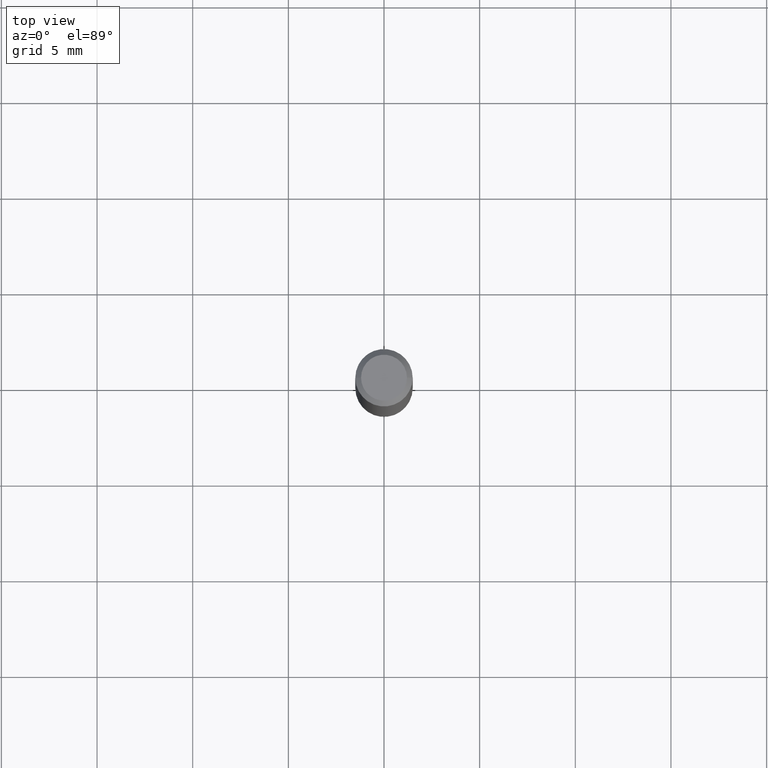
[diagram: clean part render]
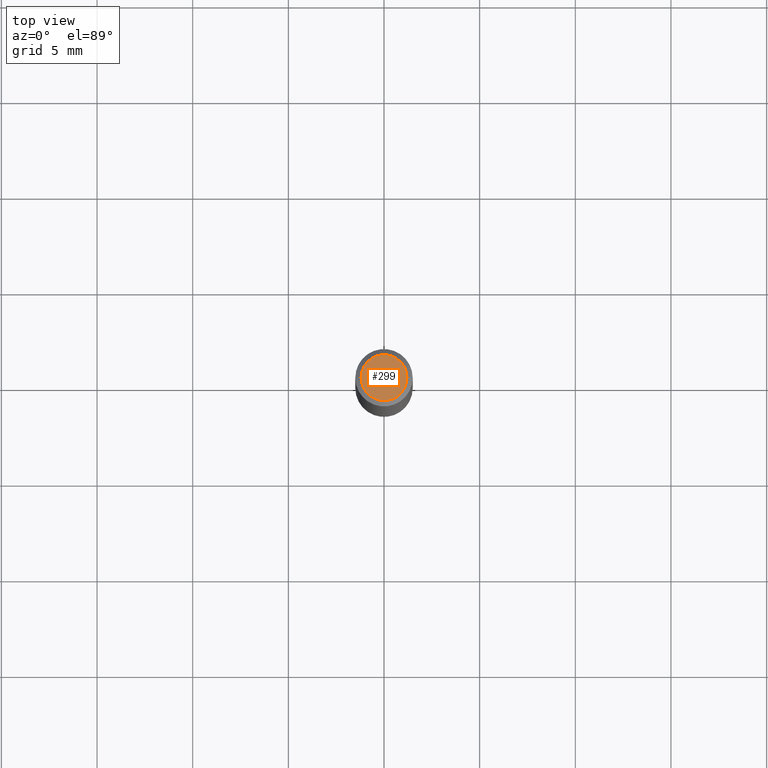
[diagram: same view with one face highlighted and labeled with its STEP entity id]
A machine part, top view. The second image highlights one B-rep face of the part: STEP entity #299.
In plain terms, the highlighted planar face has unit normal (0, -0, -1).
Its self-contained STEP definition (entity closure, byte-faithful):
#54 = ORIENTED_EDGE ( 'NONE', *, *, #225, .T. ) ;
#59 = DIRECTION ( 'NONE',  ( 2.438088387897960049E-29, -3.491481338843145188E-15, -1.000000000000000000 ) ) ;
#82 = DIRECTION ( 'NONE',  ( 1.000000000000000000, -6.982962677686266711E-15, 4.876185090822587894E-29 ) ) ;
#98 = DIRECTION ( 'NONE',  ( 1.000000000000000000, -6.982962677686266711E-15, 4.876185090822587894E-29 ) ) ;
#158 = AXIS2_PLACEMENT_3D ( 'NONE', #179, #335, #98 ) ;
#178 = VERTEX_POINT ( 'NONE', #192 ) ;
#179 = CARTESIAN_POINT ( 'NONE',  ( 8.265746106709734507E-48, -1.180129479067563789E-33, -3.380025165646692144E-19 ) ) ;
#182 = AXIS2_PLACEMENT_3D ( 'NONE', #271, #427, #82 ) ;
#192 = CARTESIAN_POINT ( 'NONE',  ( -0.04724000000000000421, 3.504923541997677355E-16, -3.380025165670481712E-19 ) ) ;
#217 = VERTEX_POINT ( 'NONE', #454 ) ;
#225 = EDGE_CURVE ( 'NONE', #178, #217, #297, .T. ) ;
#254 = PLANE ( 'NONE',  #457 ) ;
#271 = CARTESIAN_POINT ( 'NONE',  ( 8.265746106709734507E-48, -1.180129479067563789E-33, -3.380025165646692144E-19 ) ) ;
#276 = EDGE_LOOP ( 'NONE', ( #54, #347 ) ) ;
#295 = FACE_OUTER_BOUND ( 'NONE', #276, .T. ) ;
#297 = CIRCLE ( 'NONE', #182, 0.04724000000000000421 ) ;
#299 = ADVANCED_FACE ( 'NONE', ( #295 ), #254, .F. ) ;
#335 = DIRECTION ( 'NONE',  ( -2.445468806185136597E-29, 3.491481338843145583E-15, 1.000000000000000000 ) ) ;
#336 = EDGE_CURVE ( 'NONE', #217, #178, #449, .T. ) ;
#347 = ORIENTED_EDGE ( 'NONE', *, *, #336, .T. ) ;
#361 = CARTESIAN_POINT ( 'NONE',  ( 4.132873053354867254E-48, -5.900647395337818946E-34, -1.690012582823346072E-19 ) ) ;
#427 = DIRECTION ( 'NONE',  ( -2.445468806185136597E-29, 3.491481338843145583E-15, 1.000000000000000000 ) ) ;
#441 = DIRECTION ( 'NONE',  ( -1.000000000000000000, 6.982962677686265922E-15, -4.876176775795935793E-29 ) ) ;
#449 = CIRCLE ( 'NONE', #158, 0.04724000000000000421 ) ;
#454 = CARTESIAN_POINT ( 'NONE',  ( 0.04724000000000000421, -3.852183633974369345E-16, -3.380025165621689721E-19 ) ) ;
#457 = AXIS2_PLACEMENT_3D ( 'NONE', #361, #59, #441 ) ;